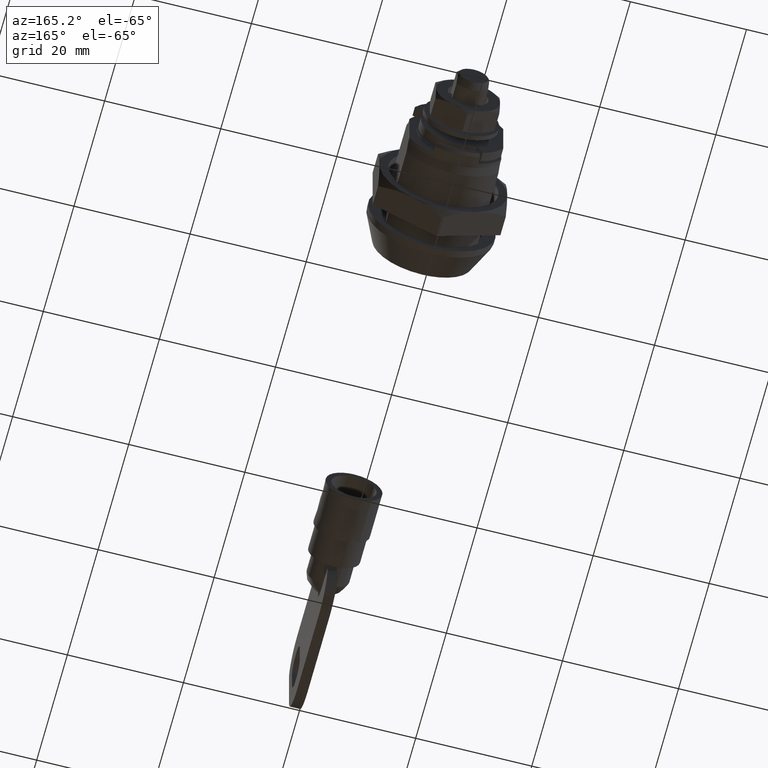
[diagram: clean part render]
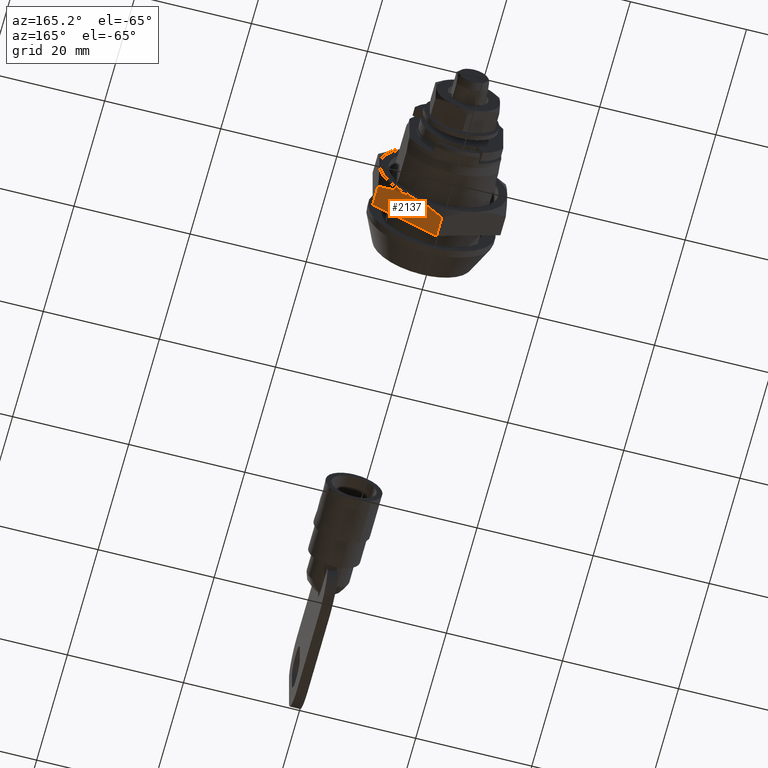
[diagram: same view with one face highlighted and labeled with its STEP entity id]
A machine part, auxiliary view. The second image highlights one B-rep face of the part: STEP entity #2137.
In plain terms, the highlighted face is a freeform B-spline surface patch.
Its self-contained STEP definition (entity closure, byte-faithful):
#1878=CARTESIAN_POINT('',(15.800003000000100,-5.500000050550921,-9.526279470814409));
#1879=VERTEX_POINT('',#1878);
#1893=CARTESIAN_POINT('',(14.817523021688620,-0.000007899644498,-12.701705239851441));
#1894=VERTEX_POINT('',#1893);
#1895=CARTESIAN_POINT('',(14.817523021688620,-0.000007899644498,-12.701705239851441));
#1896=CARTESIAN_POINT('',(15.116871391390200,-0.898052823753910,-12.183218124849210));
#1897=CARTESIAN_POINT('',(15.363588654226829,-1.802645171233111,-11.660950853518790));
#1898=CARTESIAN_POINT('',(15.619926328610539,-3.173682972662449,-10.869380856469469));
#1899=CARTESIAN_POINT('',(15.686370391649881,-3.633059441635857,-10.604159410787711));
#1900=CARTESIAN_POINT('',(15.776253380713140,-4.557162311512434,-10.070627735043290));
#1901=CARTESIAN_POINT('',(15.799655145866639,-5.021893335308151,-9.802314835952592));
#1902=CARTESIAN_POINT('',(15.800001738517830,-5.492994948750430,-9.530323872977183));
#1903=CARTESIAN_POINT('',(15.800003017764180,-5.496497370493022,-9.528301746465031));
#1904=CARTESIAN_POINT('',(15.800003000000100,-5.500000050550921,-9.526279470814409));
#1905=B_SPLINE_CURVE_WITH_KNOTS('',3,(#1895,#1896,#1897,#1898,#1899,#1900,#1901,#1902,#1903,#1904),.UNSPECIFIED.,.F.,.U.,(4,2,2,2,4),(0.0,0.250000000000001,0.375000000000001,0.500000000000001,0.500936206138868),.UNSPECIFIED.);
#1906=EDGE_CURVE('',#1894,#1879,#1905,.T.);
#1993=CARTESIAN_POINT('',(14.817523160168721,-11.000006684535000,-6.350839538770690));
#1994=VERTEX_POINT('',#1993);
#2019=CARTESIAN_POINT('',(15.800003000000100,-5.500000050550921,-9.526279470814409));
#2020=CARTESIAN_POINT('',(15.800001739676720,-5.730332441050984,-9.393296609625267));
#2021=CARTESIAN_POINT('',(15.794391920725250,-5.961781846538522,-9.259668836342822));
#2022=CARTESIAN_POINT('',(15.771958212475550,-6.426116017298004,-8.991584579406071));
#2023=CARTESIAN_POINT('',(15.754991219237979,-6.659222353200834,-8.857000171477131));
#2024=CARTESIAN_POINT('',(15.687829330297760,-7.356208716398355,-8.454593700897634));
#2025=CARTESIAN_POINT('',(15.621335508548921,-7.817750645629507,-8.188121540065071));
#2026=CARTESIAN_POINT('',(15.364572359998460,-9.194159315677934,-7.393449213606281));
#2027=CARTESIAN_POINT('',(15.117244547826630,-10.100840956828240,-6.869974718427002));
#2028=CARTESIAN_POINT('',(14.817523160168721,-11.000006684535000,-6.350839538770690));
#2029=B_SPLINE_CURVE_WITH_KNOTS('',3,(#2019,#2020,#2021,#2022,#2023,#2024,#2025,#2026,#2027,#2028),.UNSPECIFIED.,.F.,.U.,(4,2,2,2,4),(0.500936206167412,0.562500000000001,0.625000000000001,0.750000000000001,1.0),.UNSPECIFIED.);
#2030=EDGE_CURVE('',#1879,#1994,#2029,.T.);
#2100=CARTESIAN_POINT('',(11.300003000000000,0.0,-12.701706000000000));
#2101=VERTEX_POINT('',#2100);
#2102=CARTESIAN_POINT('',(14.817523021688620,-0.000007899644498,-12.701705239851441));
#2103=CARTESIAN_POINT('',(11.300003000000000,0.0,-12.701706000000000));
#2104=QUASI_UNIFORM_CURVE('',1,(#2102,#2103),.UNSPECIFIED.,.F.,.U.);
#2105=EDGE_CURVE('',#1894,#2101,#2104,.T.);
#2115=CARTESIAN_POINT('',(11.075228050964650,0.549450727929840,-13.018931527620500));
#2116=CARTESIAN_POINT('',(11.075228050964650,-11.549466022973339,-6.033618641781973));
#2117=CARTESIAN_POINT('',(16.024778109967990,0.549450727929840,-13.018931527620500));
#2118=CARTESIAN_POINT('',(16.024778109967990,-11.549466022973339,-6.033618641781973));
#2119=B_SPLINE_SURFACE_WITH_KNOTS('',1,1,((#2115,#2117),(#2116,#2118)),.UNSPECIFIED.,.F.,.F.,.U.,(2,2),(2,2),(0.0,13.970625707474490),(0.0,4.949550059003343),.UNSPECIFIED.);
#2120=ORIENTED_EDGE('',*,*,#2105,.F.);
#2121=ORIENTED_EDGE('',*,*,#1906,.T.);
#2122=ORIENTED_EDGE('',*,*,#2030,.T.);
#2123=CARTESIAN_POINT('',(11.300003000000000,-11.000015000000101,-6.350844339745850));
#2124=VERTEX_POINT('',#2123);
#2125=CARTESIAN_POINT('',(14.817523160168721,-11.000006684535000,-6.350839538770690));
#2126=CARTESIAN_POINT('',(11.300003000000000,-11.000015000000101,-6.350844339745850));
#2127=QUASI_UNIFORM_CURVE('',1,(#2125,#2126),.UNSPECIFIED.,.F.,.U.);
#2128=EDGE_CURVE('',#1994,#2124,#2127,.T.);
#2129=ORIENTED_EDGE('',*,*,#2128,.T.);
#2130=CARTESIAN_POINT('',(11.300003000000000,-11.000015000000101,-6.350844339745850));
#2131=CARTESIAN_POINT('',(11.300003000000000,0.0,-12.701706000000000));
#2132=QUASI_UNIFORM_CURVE('',1,(#2130,#2131),.UNSPECIFIED.,.F.,.U.);
#2133=EDGE_CURVE('',#2124,#2101,#2132,.T.);
#2134=ORIENTED_EDGE('',*,*,#2133,.T.);
#2135=EDGE_LOOP('',(#2120,#2121,#2122,#2129,#2134));
#2136=FACE_OUTER_BOUND('',#2135,.T.);
#2137=ADVANCED_FACE('',(#2136),#2119,.F.);